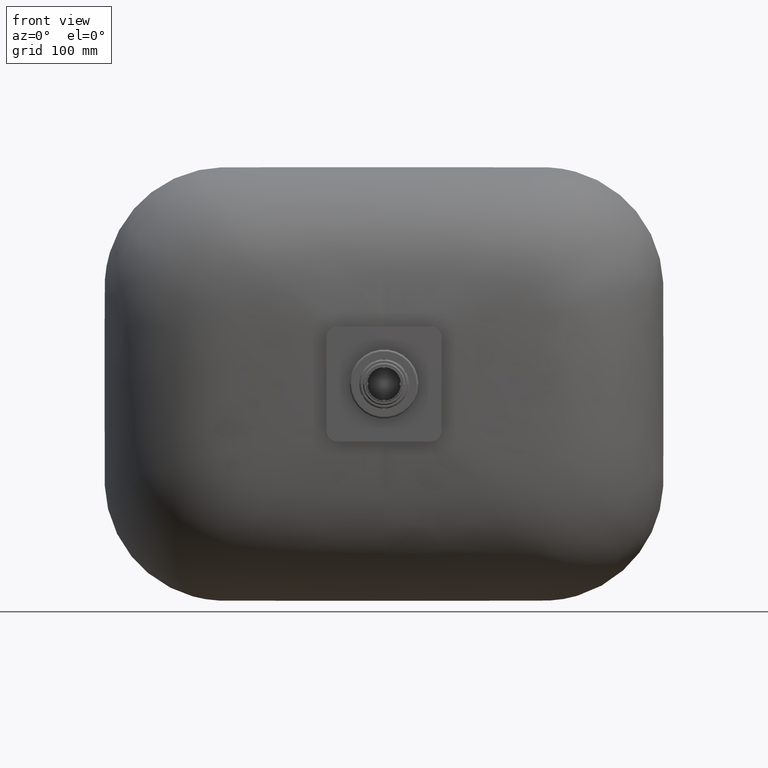
[diagram: clean part render]
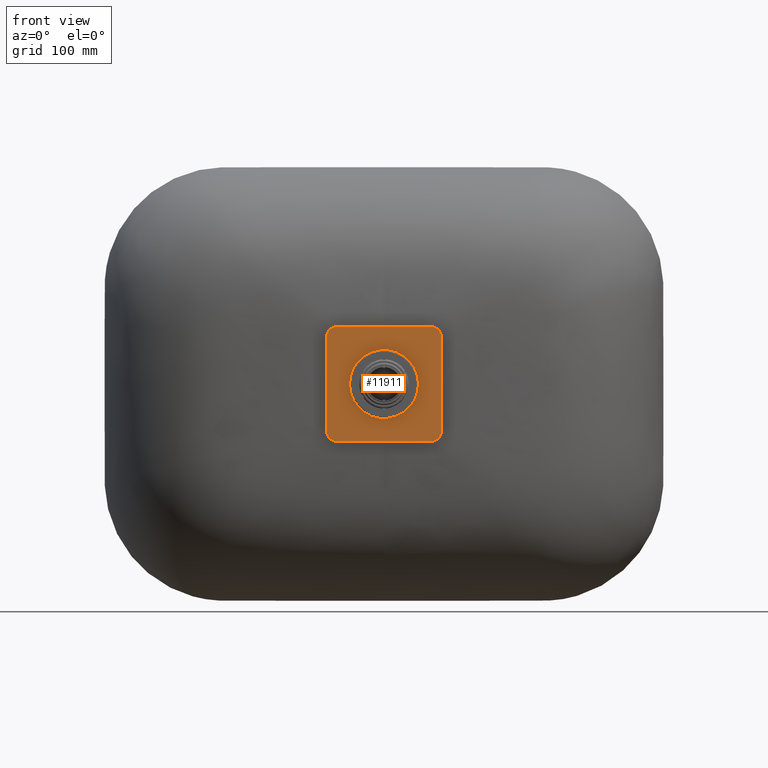
[diagram: same view with one face highlighted and labeled with its STEP entity id]
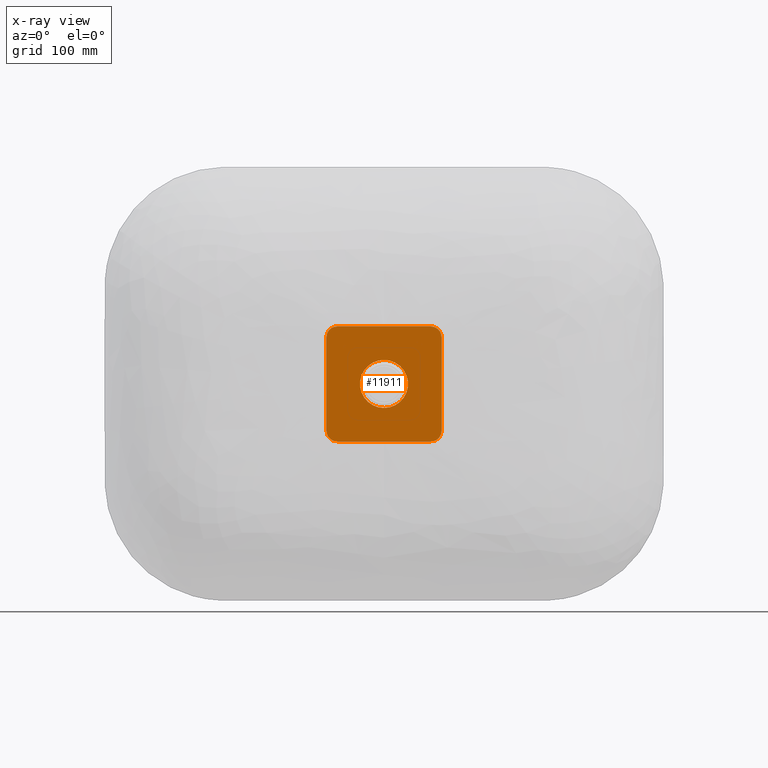
[diagram: x-ray of the same camera — body ghosted, the highlighted face saturated]
A machine part, front view. The second image highlights one B-rep face of the part: STEP entity #11911.
The next image is the same camera in x-ray: the body ghosted, the highlighted face saturated — about 0% of this face is hidden behind the body in this view.
In plain terms, the highlighted planar face has unit normal (0, 1, 0).
Its self-contained STEP definition (entity closure, byte-faithful):
#120 = DIRECTION ( 'NONE',  ( 0.0000000000000000000, -0.0000000000000000000, 1.000000000000000000 ) ) ;
#130 = CARTESIAN_POINT ( 'NONE',  ( 0.0000000000000000000, -143.0000000000000300, 0.0000000000000000000 ) ) ;
#361 = VERTEX_POINT ( 'NONE', #9990 ) ;
#651 = DIRECTION ( 'NONE',  ( -0.0000000000000000000, -1.000000000000000000, -0.0000000000000000000 ) ) ;
#699 = CARTESIAN_POINT ( 'NONE',  ( 45.00000000000000000, -143.0000000000000300, 45.00000000000000000 ) ) ;
#857 = EDGE_CURVE ( 'NONE', #13249, #2853, #3565, .T. ) ;
#987 = EDGE_CURVE ( 'NONE', #10865, #2165, #7449, .T. ) ;
#1088 = ORIENTED_EDGE ( 'NONE', *, *, #9469, .T. ) ;
#1107 = EDGE_CURVE ( 'NONE', #3255, #2340, #8643, .T. ) ;
#1224 = DIRECTION ( 'NONE',  ( 0.0000000000000000000, 0.0000000000000000000, -1.000000000000000000 ) ) ;
#1274 = ORIENTED_EDGE ( 'NONE', *, *, #1452, .T. ) ;
#1452 = EDGE_CURVE ( 'NONE', #2165, #361, #5568, .T. ) ;
#1608 = EDGE_LOOP ( 'NONE', ( #4568, #13423, #10441, #1274, #10930, #1738, #12590, #1088 ) ) ;
#1721 = EDGE_LOOP ( 'NONE', ( #10870, #10781 ) ) ;
#1738 = ORIENTED_EDGE ( 'NONE', *, *, #1107, .T. ) ;
#1822 = DIRECTION ( 'NONE',  ( -2.081668171172171300E-015, 0.0000000000000000000, 1.000000000000000000 ) ) ;
#2114 = FACE_OUTER_BOUND ( 'NONE', #1608, .T. ) ;
#2165 = VERTEX_POINT ( 'NONE', #2712 ) ;
#2200 = AXIS2_PLACEMENT_3D ( 'NONE', #3150, #10799, #4237 ) ;
#2340 = VERTEX_POINT ( 'NONE', #7465 ) ;
#2455 = CIRCLE ( 'NONE', #12928, 9.999999999999987600 ) ;
#2707 = DIRECTION ( 'NONE',  ( -1.000000000000000000, 0.0000000000000000000, 3.083952846180991300E-016 ) ) ;
#2712 = CARTESIAN_POINT ( 'NONE',  ( -55.00000000000000700, -143.0000000000000300, 45.00000000000000000 ) ) ;
#2853 = VERTEX_POINT ( 'NONE', #10338 ) ;
#3150 = CARTESIAN_POINT ( 'NONE',  ( -45.00000000000000000, -143.0000000000000300, -45.00000000000000000 ) ) ;
#3181 = VERTEX_POINT ( 'NONE', #4062 ) ;
#3255 = VERTEX_POINT ( 'NONE', #10897 ) ;
#3411 = LINE ( 'NONE', #8149, #5975 ) ;
#3565 = CIRCLE ( 'NONE', #10454, 23.00000000000000000 ) ;
#3903 = CIRCLE ( 'NONE', #2200, 9.999999999999980500 ) ;
#4062 = CARTESIAN_POINT ( 'NONE',  ( 55.00000000000000700, -143.0000000000000300, 45.00000000000000000 ) ) ;
#4202 = VECTOR ( 'NONE', #9580, 1000.000000000000000 ) ;
#4237 = DIRECTION ( 'NONE',  ( 0.0000000000000000000, 0.0000000000000000000, 1.000000000000000000 ) ) ;
#4321 = AXIS2_PLACEMENT_3D ( 'NONE', #8386, #8284, #8230 ) ;
#4478 = PLANE ( 'NONE',  #4794 ) ;
#4568 = ORIENTED_EDGE ( 'NONE', *, *, #11096, .T. ) ;
#4618 = DIRECTION ( 'NONE',  ( 0.0000000000000000000, -1.000000000000000000, 0.0000000000000000000 ) ) ;
#4637 = CARTESIAN_POINT ( 'NONE',  ( -54.99999999999999300, -143.0000000000000300, -45.00000000000000000 ) ) ;
#4794 = AXIS2_PLACEMENT_3D ( 'NONE', #5598, #11051, #120 ) ;
#5568 = LINE ( 'NONE', #4637, #11382 ) ;
#5598 = CARTESIAN_POINT ( 'NONE',  ( 29.99999999999997200, -143.0000000000000300, -30.00000000000000000 ) ) ;
#5654 = DIRECTION ( 'NONE',  ( 1.000000000000000000, -0.0000000000000000000, 0.0000000000000000000 ) ) ;
#5748 = VECTOR ( 'NONE', #5654, 1000.000000000000000 ) ;
#5975 = VECTOR ( 'NONE', #2707, 1000.000000000000000 ) ;
#6068 = AXIS2_PLACEMENT_3D ( 'NONE', #130, #7799, #1224 ) ;
#6145 = EDGE_CURVE ( 'NONE', #11456, #10865, #3411, .T. ) ;
#6408 = EDGE_CURVE ( 'NONE', #361, #3255, #3903, .T. ) ;
#6899 = AXIS2_PLACEMENT_3D ( 'NONE', #7213, #651, #8320 ) ;
#7074 = CARTESIAN_POINT ( 'NONE',  ( -45.00000000000000000, -143.0000000000000300, 55.00000000000000000 ) ) ;
#7213 = CARTESIAN_POINT ( 'NONE',  ( 45.00000000000000000, -143.0000000000000300, -45.00000000000000000 ) ) ;
#7308 = CARTESIAN_POINT ( 'NONE',  ( 54.99999999999999300, -143.0000000000000300, -45.00000000000000000 ) ) ;
#7449 = CIRCLE ( 'NONE', #4321, 10.00000000000000200 ) ;
#7465 = CARTESIAN_POINT ( 'NONE',  ( 44.99999999999999300, -143.0000000000000300, -54.99999999999997900 ) ) ;
#7674 = DIRECTION ( 'NONE',  ( 0.0000000000000000000, 0.0000000000000000000, -1.000000000000000000 ) ) ;
#7799 = DIRECTION ( 'NONE',  ( 0.0000000000000000000, -1.000000000000000000, 0.0000000000000000000 ) ) ;
#8149 = CARTESIAN_POINT ( 'NONE',  ( 45.00000000000000700, -143.0000000000000300, 54.99999999999996400 ) ) ;
#8230 = DIRECTION ( 'NONE',  ( 0.0000000000000000000, 0.0000000000000000000, 1.000000000000000000 ) ) ;
#8284 = DIRECTION ( 'NONE',  ( -0.0000000000000000000, -1.000000000000000000, -0.0000000000000000000 ) ) ;
#8320 = DIRECTION ( 'NONE',  ( 2.081668171172172500E-015, 0.0000000000000000000, 1.000000000000000000 ) ) ;
#8374 = DIRECTION ( 'NONE',  ( -0.0000000000000000000, -1.000000000000000000, -0.0000000000000000000 ) ) ;
#8386 = CARTESIAN_POINT ( 'NONE',  ( -45.00000000000000000, -143.0000000000000300, 45.00000000000000000 ) ) ;
#8412 = DIRECTION ( 'NONE',  ( 1.541976423090495400E-016, 0.0000000000000000000, -1.000000000000000000 ) ) ;
#8550 = CARTESIAN_POINT ( 'NONE',  ( 2.816687638038912400E-015, -143.0000000000000300, 23.00000000000000000 ) ) ;
#8643 = LINE ( 'NONE', #12598, #5748 ) ;
#9469 = EDGE_CURVE ( 'NONE', #11723, #3181, #12234, .T. ) ;
#9580 = DIRECTION ( 'NONE',  ( 1.541976423090495400E-016, -0.0000000000000000000, 1.000000000000000000 ) ) ;
#9990 = CARTESIAN_POINT ( 'NONE',  ( -54.99999999999997900, -143.0000000000000300, -45.00000000000000000 ) ) ;
#10055 = CARTESIAN_POINT ( 'NONE',  ( 0.0000000000000000000, -143.0000000000000300, 0.0000000000000000000 ) ) ;
#10338 = CARTESIAN_POINT ( 'NONE',  ( 0.0000000000000000000, -143.0000000000000300, -23.00000000000000000 ) ) ;
#10441 = ORIENTED_EDGE ( 'NONE', *, *, #987, .T. ) ;
#10454 = AXIS2_PLACEMENT_3D ( 'NONE', #10055, #4618, #7674 ) ;
#10781 = ORIENTED_EDGE ( 'NONE', *, *, #857, .F. ) ;
#10799 = DIRECTION ( 'NONE',  ( -0.0000000000000000000, -1.000000000000000000, -0.0000000000000000000 ) ) ;
#10817 = CIRCLE ( 'NONE', #6899, 9.999999999999980500 ) ;
#10850 = FACE_BOUND ( 'NONE', #1721, .T. ) ;
#10865 = VERTEX_POINT ( 'NONE', #7074 ) ;
#10870 = ORIENTED_EDGE ( 'NONE', *, *, #11280, .F. ) ;
#10897 = CARTESIAN_POINT ( 'NONE',  ( -44.99999999999999300, -143.0000000000000300, -54.99999999999996400 ) ) ;
#10930 = ORIENTED_EDGE ( 'NONE', *, *, #6408, .T. ) ;
#11051 = DIRECTION ( 'NONE',  ( 0.0000000000000000000, 1.000000000000000000, 0.0000000000000000000 ) ) ;
#11096 = EDGE_CURVE ( 'NONE', #3181, #11456, #2455, .T. ) ;
#11280 = EDGE_CURVE ( 'NONE', #2853, #13249, #12722, .T. ) ;
#11382 = VECTOR ( 'NONE', #8412, 1000.000000000000000 ) ;
#11456 = VERTEX_POINT ( 'NONE', #13461 ) ;
#11723 = VERTEX_POINT ( 'NONE', #7308 ) ;
#11793 = CARTESIAN_POINT ( 'NONE',  ( 54.99999999999999300, -143.0000000000000300, -45.00000000000000000 ) ) ;
#11911 = ADVANCED_FACE ( 'NONE', ( #10850, #2114 ), #4478, .F. ) ;
#12234 = LINE ( 'NONE', #11793, #4202 ) ;
#12590 = ORIENTED_EDGE ( 'NONE', *, *, #13318, .T. ) ;
#12598 = CARTESIAN_POINT ( 'NONE',  ( 44.99999999999999300, -143.0000000000000300, -54.99999999999996400 ) ) ;
#12722 = CIRCLE ( 'NONE', #6068, 23.00000000000000000 ) ;
#12928 = AXIS2_PLACEMENT_3D ( 'NONE', #699, #8374, #1822 ) ;
#13249 = VERTEX_POINT ( 'NONE', #8550 ) ;
#13318 = EDGE_CURVE ( 'NONE', #2340, #11723, #10817, .T. ) ;
#13423 = ORIENTED_EDGE ( 'NONE', *, *, #6145, .T. ) ;
#13461 = CARTESIAN_POINT ( 'NONE',  ( 45.00000000000000700, -143.0000000000000300, 54.99999999999996400 ) ) ;